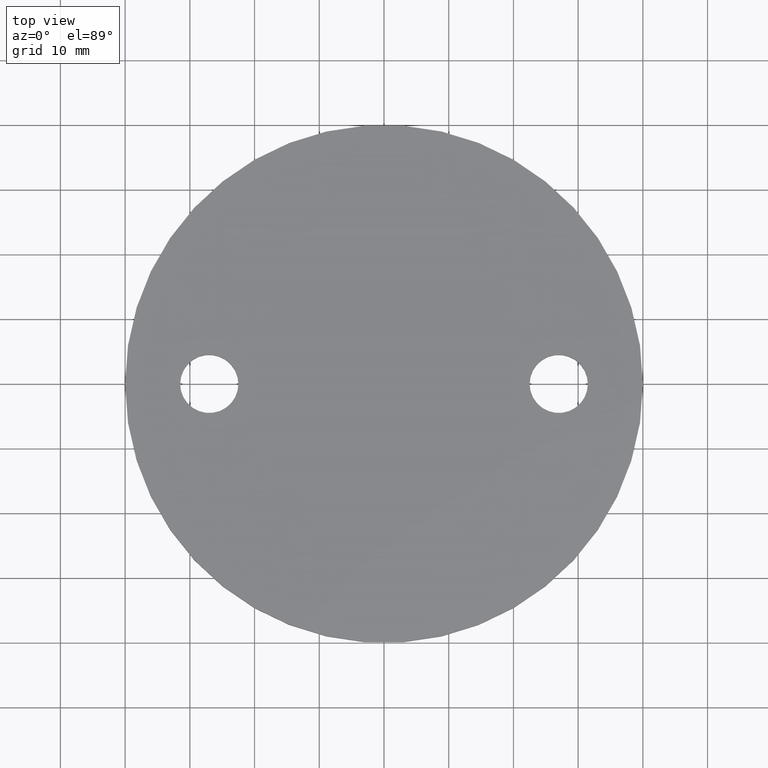
[diagram: clean part render]
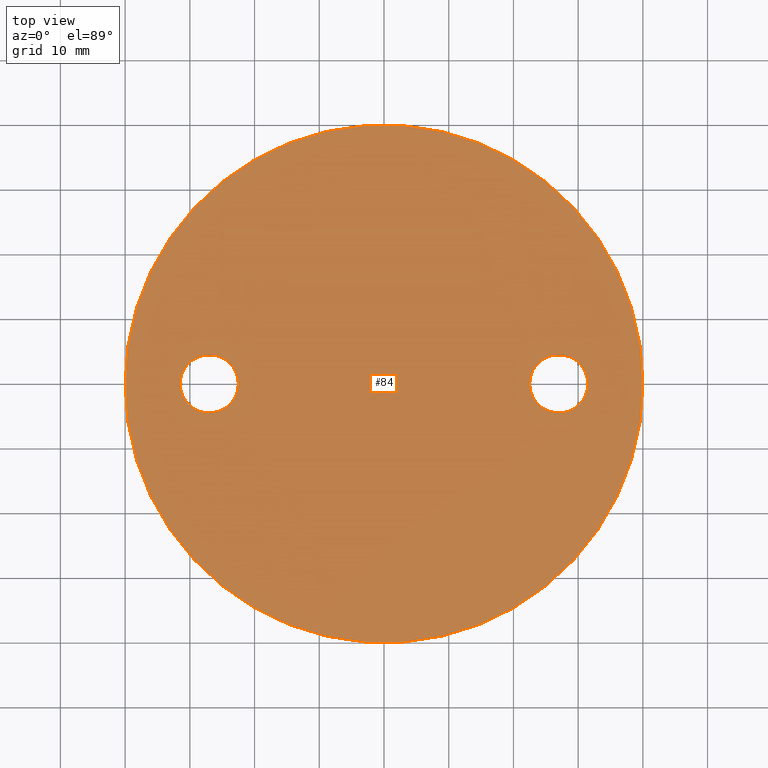
[diagram: same view with one face highlighted and labeled with its STEP entity id]
A machine part, top view. The second image highlights one B-rep face of the part: STEP entity #84.
In plain terms, the highlighted planar face has unit normal (0, 0, -1).
Its self-contained STEP definition (entity closure, byte-faithful):
#15=FACE_BOUND('',#28,.T.);
#16=FACE_BOUND('',#29,.T.);
#19=PLANE('',#114);
#22=FACE_OUTER_BOUND('',#27,.T.);
#27=EDGE_LOOP('',(#66));
#28=EDGE_LOOP('',(#67));
#29=EDGE_LOOP('',(#68));
#42=CIRCLE('',#113,40.);
#43=CIRCLE('',#115,4.5);
#44=CIRCLE('',#116,4.5);
#48=VERTEX_POINT('',#153);
#49=VERTEX_POINT('',#157);
#50=VERTEX_POINT('',#159);
#55=EDGE_CURVE('',#48,#48,#42,.T.);
#56=EDGE_CURVE('',#49,#49,#43,.T.);
#57=EDGE_CURVE('',#50,#50,#44,.T.);
#66=ORIENTED_EDGE('',*,*,#55,.F.);
#67=ORIENTED_EDGE('',*,*,#56,.F.);
#68=ORIENTED_EDGE('',*,*,#57,.F.);
#84=ADVANCED_FACE('',(#22,#15,#16),#19,.F.);
#113=AXIS2_PLACEMENT_3D('',#155,#129,#130);
#114=AXIS2_PLACEMENT_3D('',#156,#131,#132);
#115=AXIS2_PLACEMENT_3D('',#158,#133,#134);
#116=AXIS2_PLACEMENT_3D('',#160,#135,#136);
#129=DIRECTION('center_axis',(6.6404364E-8,0.,-0.999999999999998));
#130=DIRECTION('ref_axis',(0.999999999999998,0.,6.6404364E-8));
#131=DIRECTION('center_axis',(6.6404364E-8,0.,-0.999999999999998));
#132=DIRECTION('ref_axis',(-0.999999999999998,0.,-6.6404364E-8));
#133=DIRECTION('center_axis',(-6.6404364E-8,0.,0.999999999999998));
#134=DIRECTION('ref_axis',(0.999999999999998,0.,6.6404364E-8));
#135=DIRECTION('center_axis',(-6.6404364E-8,0.,0.999999999999998));
#136=DIRECTION('ref_axis',(0.999999999999998,0.,6.6404364E-8));
#153=CARTESIAN_POINT('',(-39.9999997343827,-4.52971E-14,-4.00000132792541));
#155=CARTESIAN_POINT('Origin',(2.656171913228E-7,-4.52971E-14,-3.99999867175084));
#156=CARTESIAN_POINT('Origin',(-48.001199734566,48.0012000001833,-4.00000185924));
#157=CARTESIAN_POINT('',(-31.4999989156421,-2.842171E-14,-4.00000076348826));
#158=CARTESIAN_POINT('Origin',(-26.9999989156421,-2.842171E-14,-4.00000046466862));
#159=CARTESIAN_POINT('',(22.5000011840302,-2.842171E-14,-3.9999971776526));
#160=CARTESIAN_POINT('Origin',(27.0000011840301,-2.842171E-14,-3.99999687883296));